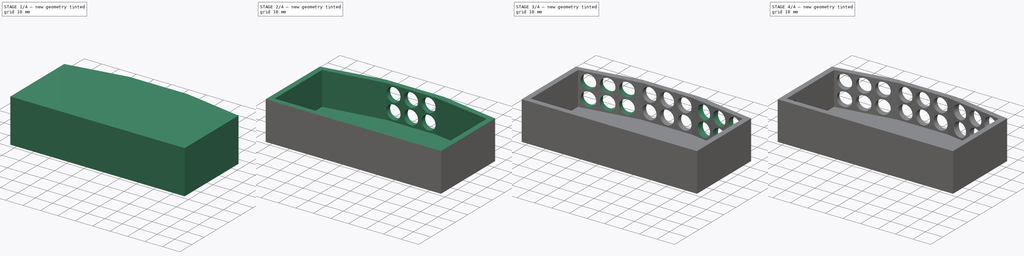
[diagram: build sequence overview — one tinted view per stage of 4, left to right]
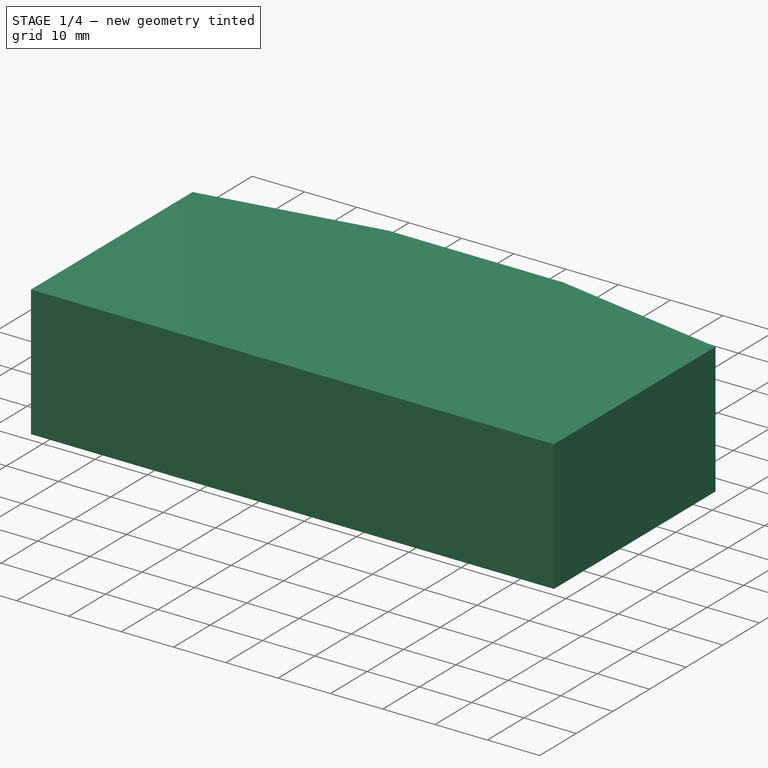
[diagram: stage 1 of 4 — iso view after this stage's code; geometry added in this stage tinted green]
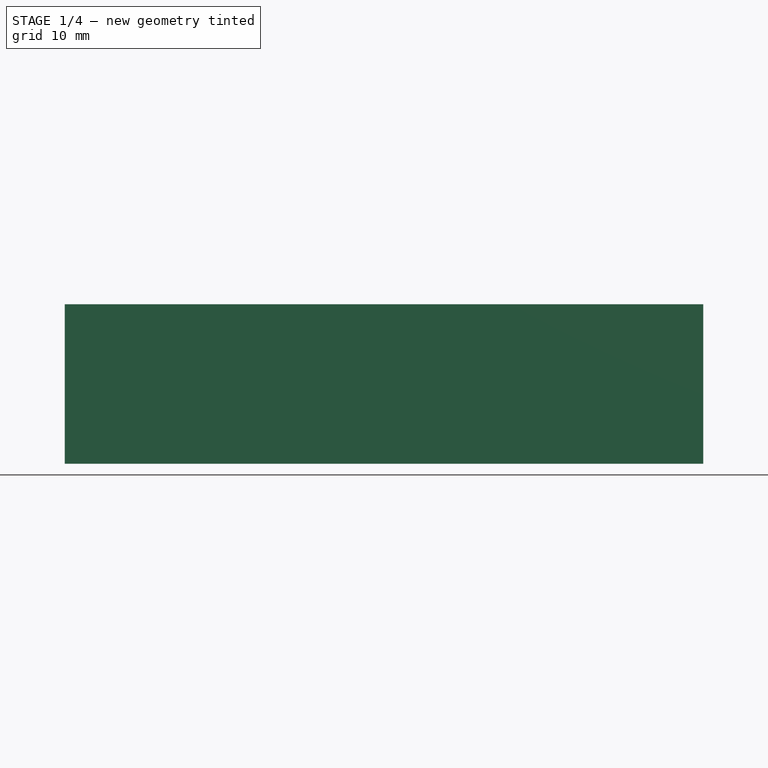
[diagram: stage 1 of 4 — front view after this stage's code; geometry added in this stage tinted green]
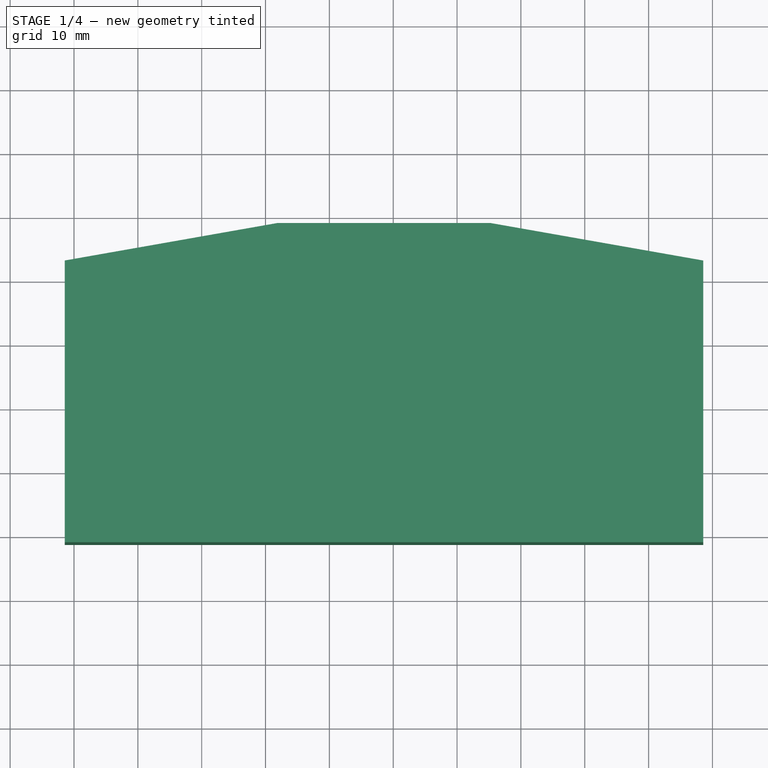
[diagram: stage 1 of 4 — top view after this stage's code; geometry added in this stage tinted green]
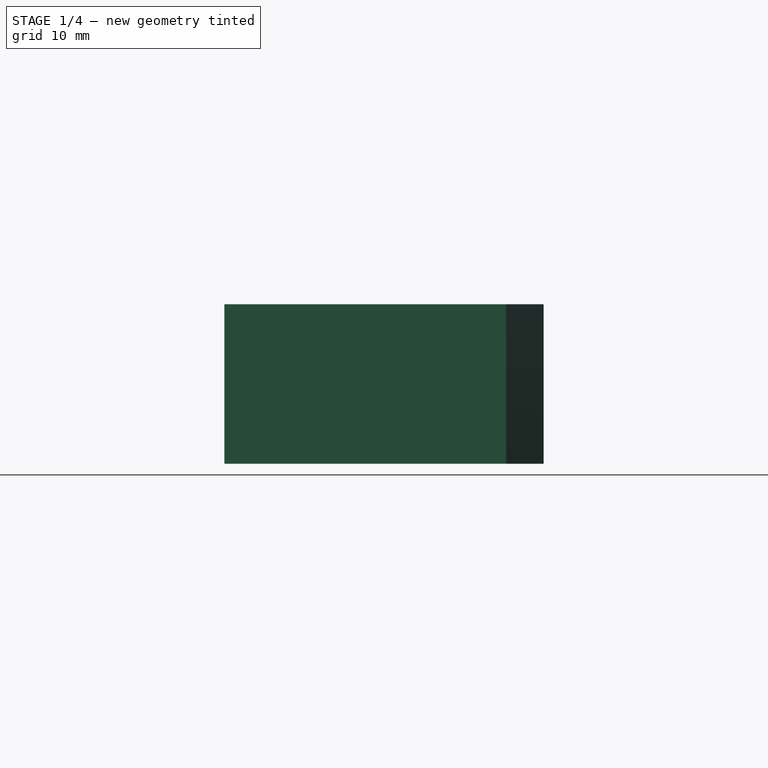
[diagram: stage 1 of 4 — right view after this stage's code; geometry added in this stage tinted green]
FCSTD DOCUMENT  (FreeCAD 0.18.4R)
Label: ir_mount_base
License: All rights reserved
LicenseURL: http://en.wikipedia.org/wiki/All_rights_reserved
objects: Sketcher::SketchObject×9, PartDesign::Pocket×9, App::MeasureDistance×9, PartDesign::Pad×1, PartDesign::Body×1
note: 30 computed .brp shape members not serialized (recipe doc carries the construction recipe); baked Part::Feature solids carry a one-line shape summary decoded from their .brp

FEATURE [Sketcher::SketchObject] Sketch
  MapMode = 5
  Support = -> [XY_Plane]
  sketch-geometry (4):
    g0: LineSegment StartX=8.55599 StartY=8.81356 StartZ=0 EndX=108.556 EndY=8.81356 EndZ=0
    g1: LineSegment StartX=108.556 StartY=8.81356 StartZ=0 EndX=108.556 EndY=58.8136 EndZ=0
    g2: LineSegment StartX=108.556 StartY=58.8136 StartZ=0 EndX=8.55599 EndY=58.8136 EndZ=0
    g3: LineSegment StartX=8.55599 StartY=58.8136 StartZ=0 EndX=8.55599 EndY=8.81356 EndZ=0
  constraints (10):
    c: Coincident(g0,g1)
    c: Coincident(g1,g2)
    c: Coincident(g2,g3)
    c: Coincident(g3,g0)
    c: Horizontal(g0)
    c: Horizontal(g2)
    c: Vertical(g1)
    c: Vertical(g3)
    c: Distance(g0) = 100
    c: Distance(g3) = 50
FEATURE [PartDesign::Pad] Pad
  Length = 25
  Length2 = 100
  Profile = -> Sketch
  Type = 0
FEATURE [Sketcher::SketchObject] Sketch001
  ExternalGeometry = -> [Pad]
  MapMode = 5
  Placement = pos=(0,0,25) rot=(0,0,1;0rad)
  Support = -> [Pad]
  sketch-geometry (6):
    g0: LineSegment StartX=8.55599 StartY=58.8136 StartZ=0 EndX=41.856 EndY=58.8136 EndZ=0
    g1: LineSegment StartX=41.856 StartY=58.8136 StartZ=0 EndX=8.55599 EndY=52.9436 EndZ=0
    g2: LineSegment StartX=8.55599 StartY=52.9436 StartZ=0 EndX=8.55599 EndY=58.8136 EndZ=0
    g3: LineSegment StartX=108.556 StartY=58.8136 StartZ=0 EndX=75.256 EndY=58.8136 EndZ=0
    g4: LineSegment StartX=75.256 StartY=58.8136 StartZ=0 EndX=108.556 EndY=52.9436 EndZ=0
    g5: LineSegment StartX=108.556 StartY=58.8136 StartZ=0 EndX=108.556 EndY=52.9436 EndZ=0
  constraints (18):
    c: Distance(g2) = 5.87
    c: Coincident(g2,g0)
    c: Coincident(g1,g2)
    c: Coincident(g1,g0)
    c: Distance(g0) = 33.3
    c: Distance(g1,g-3) = 5.87
    c: Distance(g0,g-4) = 33.3
    c: Distance(g0,g-5) = 50
    c: Distance(g1,g-6) = 100
    c: Coincident(g5,g3)
    c: Coincident(g4,g5)
    c: Coincident(g3,g4)
    c: Distance(g5) = 5.87
    c: Distance(g3) = 33.3
    c: Distance(g3,g-4) = 100
    c: Distance(g3,g-5) = 50
    c: Distance(g3,g-5) = 50
    c: Distance(g4,g-4) = 100
FEATURE [PartDesign::Pocket] Pocket
  BaseFeature = -> Pad
  Length = 25
  Length2 = 100
  Profile = -> Sketch001
  Type = 0
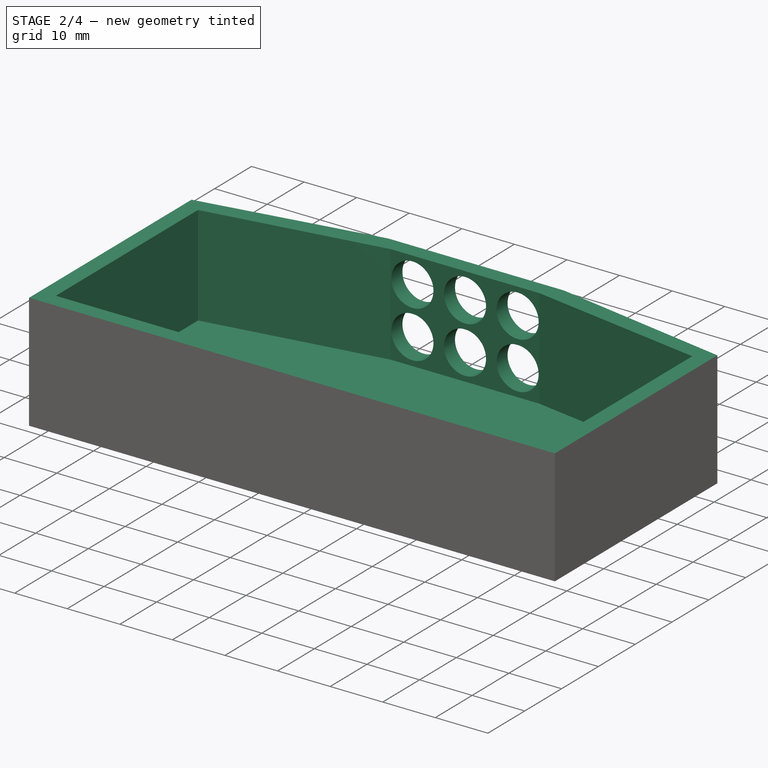
[diagram: stage 2 of 4 — iso view after this stage's code; geometry added in this stage tinted green]
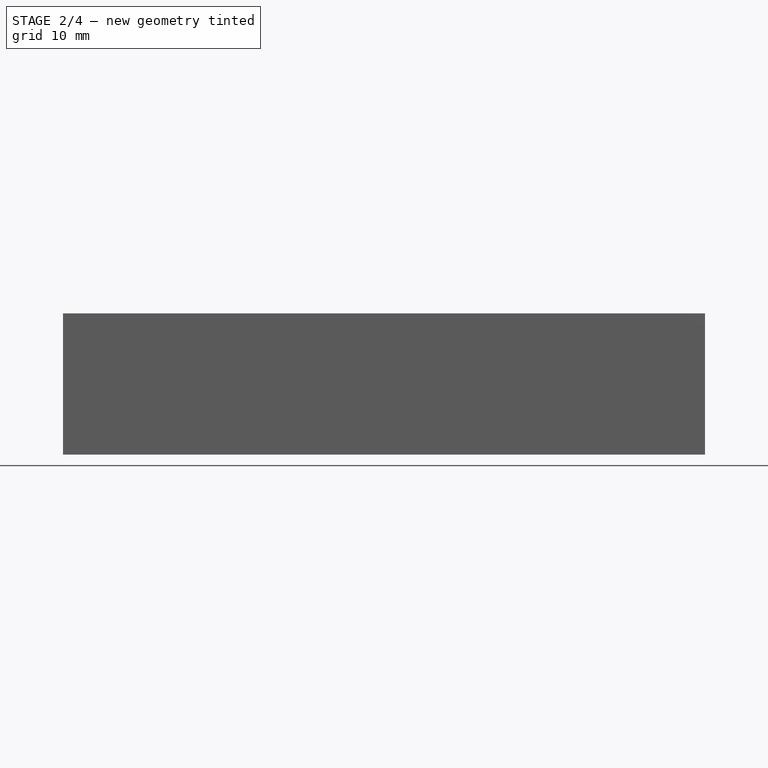
[diagram: stage 2 of 4 — front view after this stage's code; geometry added in this stage tinted green]
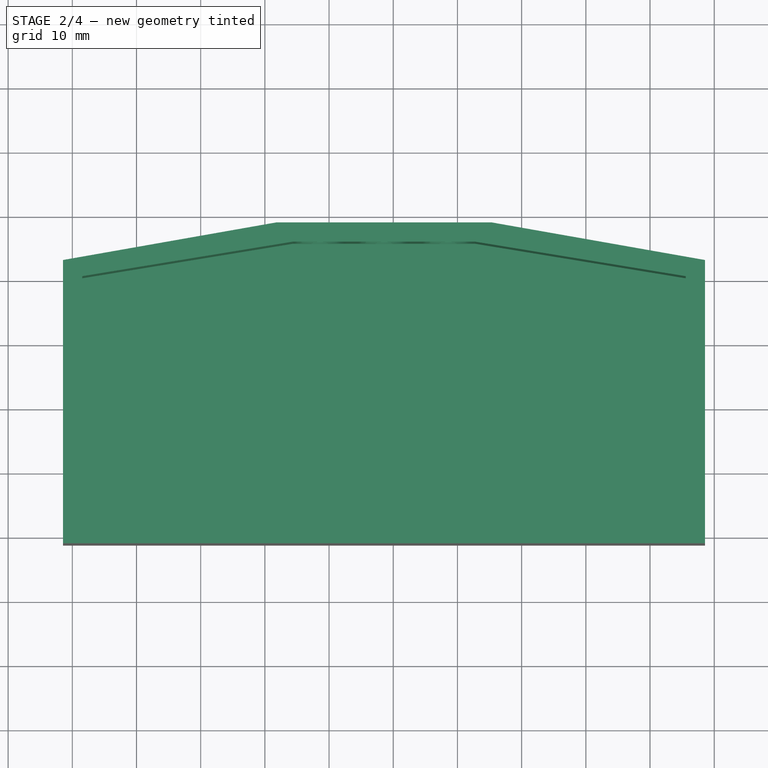
[diagram: stage 2 of 4 — top view after this stage's code; geometry added in this stage tinted green]
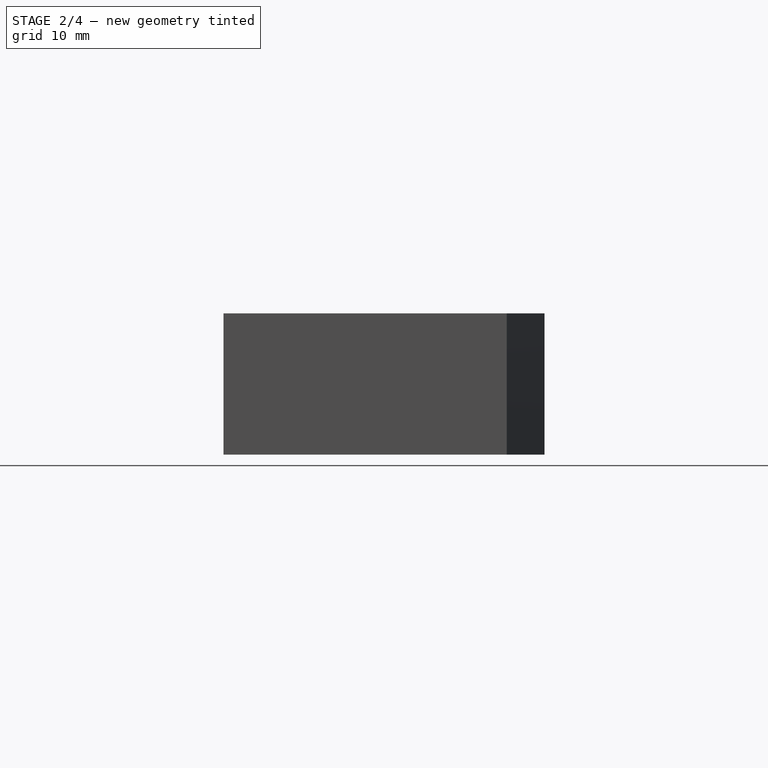
[diagram: stage 2 of 4 — right view after this stage's code; geometry added in this stage tinted green]
FEATURE [Sketcher::SketchObject] Sketch002
  ExternalGeometry = -> [Pocket]
  MapMode = 5
  Placement = pos=(0,0,25) rot=(0,0,1;0rad)
  Support = -> [Pocket]
  sketch-geometry (6):
    g0: LineSegment StartX=11.556 StartY=50.4261 StartZ=0 EndX=11.556 EndY=11.8136 EndZ=0
    g1: LineSegment StartX=11.556 StartY=11.8136 StartZ=0 EndX=105.556 EndY=11.8136 EndZ=0
    g2: LineSegment StartX=105.556 StartY=11.8136 StartZ=0 EndX=105.556 EndY=50.4261 EndZ=0
    g3: LineSegment StartX=105.556 StartY=50.4261 StartZ=0 EndX=72.6947 EndY=55.8136 EndZ=0
    g4: LineSegment StartX=72.6947 StartY=55.8136 StartZ=0 EndX=44.4173 EndY=55.8136 EndZ=0
    g5: LineSegment StartX=44.4173 StartY=55.8136 StartZ=0 EndX=11.556 EndY=50.4261 EndZ=0
  constraints (18):
    c: Coincident(g4,g3)
    c: Coincident(g3,g2)
    c: Coincident(g2,g1)
    c: Coincident(g1,g0)
    c: Coincident(g0,g5)
    c: Coincident(g5,g4)
    c: Distance(g0,g-5) = 3
    c: Distance(g0,g-5) = 3
    c: Distance(g0,g-6) = 3
    c: Distance(g1,g-7) = 3
    c: Distance(g1,g-6) = 3
    c: Distance(g2,g-7) = 3
    c: Distance(g5) = 33.3
    c: Distance(g3) = 33.3
    c: Distance(g4,g-4) = 3
    c: Distance(g3,g-4) = 3
    c: Distance(g2,g-8) = 3
    c: Distance(g0,g-3) = 3
FEATURE [PartDesign::Pocket] Pocket001
  BaseFeature = -> Pocket
  Length = 22
  Length2 = 100
  Profile = -> Sketch002
  Type = 0
FEATURE [PartDesign::Pocket] Pocket002
  BaseFeature = -> Pocket001
  Length = 3
  Length2 = 100
  Profile = -> Pocket001 [Face5]
  Type = 0
FEATURE [Sketcher::SketchObject] Sketch003
  ExternalGeometry = -> [Pocket002]
  MapMode = 5
  Placement = pos=(0,58.8136,0) rot=(0,0.707107,0.707107;3.14159rad)
  Support = -> [Pocket002]
  sketch-geometry (6):
    g0: Circle CenterX=-58.556 CenterY=17 CenterZ=0 NormalX=0 NormalY=0 NormalZ=1 AngleXU=0 Radius=4
    g1: Circle CenterX=-48.556 CenterY=17 CenterZ=0 NormalX=0 NormalY=0 NormalZ=1 AngleXU=0 Radius=4
    g2: Circle CenterX=-68.556 CenterY=17 CenterZ=0 NormalX=0 NormalY=0 NormalZ=1 AngleXU=0 Radius=4
    g3: Circle CenterX=-68.556 CenterY=8 CenterZ=0 NormalX=0 NormalY=0 NormalZ=1 AngleXU=0 Radius=4
    g4: Circle CenterX=-58.556 CenterY=8 CenterZ=0 NormalX=0 NormalY=0 NormalZ=1 AngleXU=0 Radius=4
    g5: Circle CenterX=-48.556 CenterY=8 CenterZ=0 NormalX=0 NormalY=0 NormalZ=1 AngleXU=0 Radius=4
  constraints (20):
    c: Radius(g1) = 4
    c: Radius(g0) = 4
    c: Radius(g2) = 4
    c: Radius(g3) = 4
    c: Radius(g4) = 4
    c: Radius(g5) = 4
    c: Distance(g5,g-3) = 8
    c: Distance(g1,g-6) = 5
    c: Distance(g0,g-6) = 5
    c: Distance(g4,g-3) = 8
    c: Distance(g3,g-3) = 8
    c: Distance(g2,g-6) = 5
    c: Distance(g-5) = 22
    c: Distance(g-6) = 33.4
    c: Distance(g0,g1) = 10
    c: Distance(g2,g0) = 10
    c: Distance(g1,g-5) = 6.7
    c: Distance(g5,g-5) = 6.7
    c: Distance(g5,g4) = 10
    c: Distance(g4,g3) = 10
FEATURE [PartDesign::Pocket] Pocket003
  BaseFeature = -> Pocket002
  Length = 5
  Length2 = 100
  Profile = -> Sketch003
  Type = 0
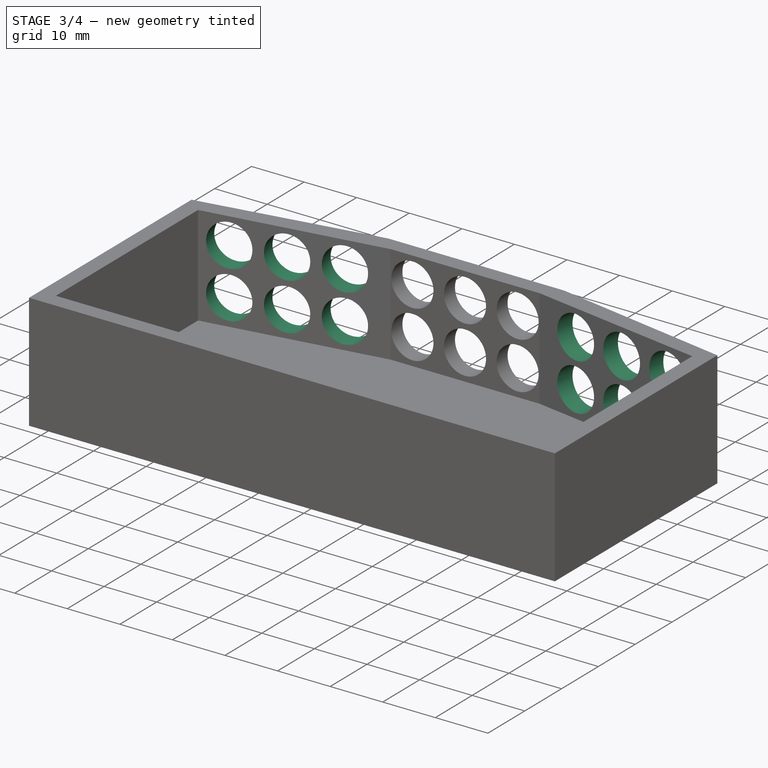
[diagram: stage 3 of 4 — iso view after this stage's code; geometry added in this stage tinted green]
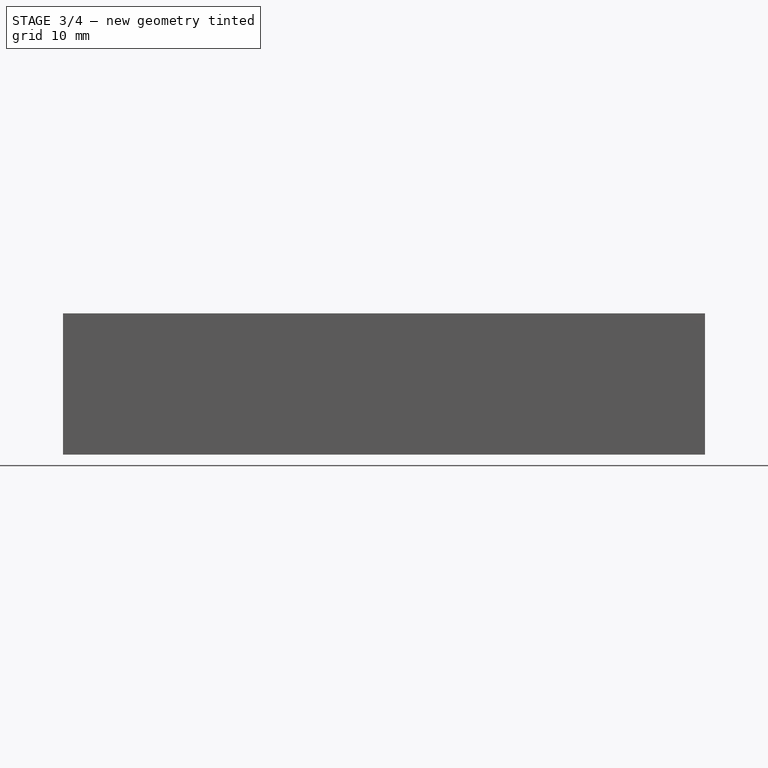
[diagram: stage 3 of 4 — front view after this stage's code; geometry added in this stage tinted green]
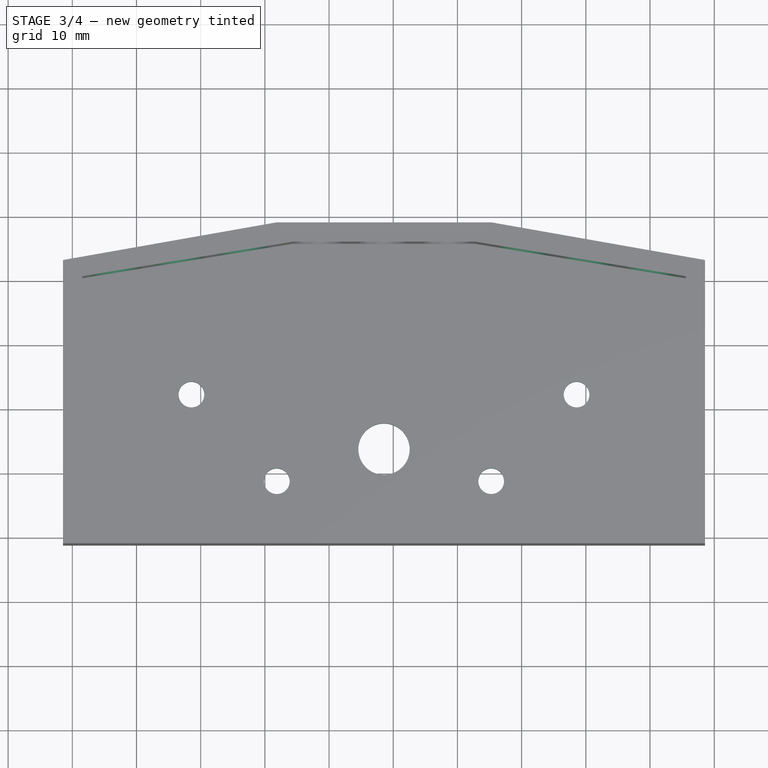
[diagram: stage 3 of 4 — top view after this stage's code; geometry added in this stage tinted green]
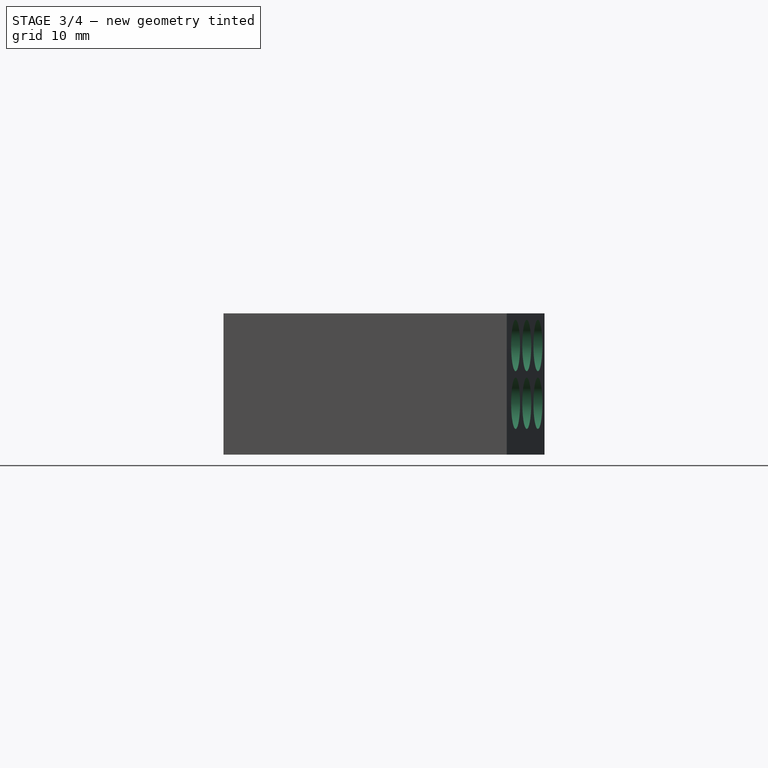
[diagram: stage 3 of 4 — right view after this stage's code; geometry added in this stage tinted green]
FEATURE [Sketcher::SketchObject] Sketch004
  ExternalGeometry = -> [Pocket003]
  MapMode = 5
  Placement = pos=(-8.79359,49.8852,0) rot=(-0.061728,0.705758,0.705758;3.26489rad)
  Support = -> [Pocket003]
  sketch-geometry (6):
    g0: Circle CenterX=-45.5271 CenterY=17 CenterZ=0 NormalX=0 NormalY=0 NormalZ=1 AngleXU=0 Radius=4
    g1: Circle CenterX=-35.5271 CenterY=17 CenterZ=0 NormalX=0 NormalY=0 NormalZ=1 AngleXU=0 Radius=4
    g2: Circle CenterX=-25.5271 CenterY=17 CenterZ=0 NormalX=0 NormalY=0 NormalZ=1 AngleXU=0 Radius=4
    g3: Circle CenterX=-45.5271 CenterY=8 CenterZ=0 NormalX=0 NormalY=0 NormalZ=1 AngleXU=0 Radius=4
    g4: Circle CenterX=-35.5271 CenterY=8 CenterZ=0 NormalX=0 NormalY=0 NormalZ=1 AngleXU=0 Radius=4
    g5: Circle CenterX=-25.5271 CenterY=8 CenterZ=0 NormalX=0 NormalY=0 NormalZ=1 AngleXU=0 Radius=4
  constraints (22):
    c: Distance(g-3) = 33.8134
    c: Distance(g-5) = 33.8134
    c: Distance(g-4) = 22
    c: Radius(g2) = 4
    c: Radius(g1) = 4
    c: Radius(g0) = 4
    c: Radius(g5) = 4
    c: Radius(g4) = 4
    c: Radius(g3) = 4
    c: Distance(g1,g2) = 10
    c: Distance(g0,g1) = 10
    c: Distance(g0,g-3) = 5
    c: Distance(g1,g-3) = 5
    c: Distance(g2,g-3) = 5
    c: Distance(g5,g-5) = 8
    c: Distance(g4,g-5) = 8
    c: Distance(g-5) = 33.8134
    c: Distance(g3,g-5) = 8
    c: Distance(g3,g4) = 10
    c: Distance(g4,g5) = 10
    c: Distance(g2,g-4) = 7.91
    c: Distance(g5,g-4) = 7.91
FEATURE [PartDesign::Pocket] Pocket004
  BaseFeature = -> Pocket003
  Length = 5
  Length2 = 100
  Profile = -> Sketch004
  Type = 0
FEATURE [Sketcher::SketchObject] Sketch005
  ExternalGeometry = -> [Pocket004]
  MapMode = 5
  Placement = pos=(12.323,69.9072,0) rot=(0.061728,0.705758,0.705758;3.01829rad)
  Support = -> [Pocket004]
  sketch-geometry (6):
    g0: Circle CenterX=-89.81 CenterY=17 CenterZ=0 NormalX=0 NormalY=0 NormalZ=1 AngleXU=0 Radius=4
    g1: Circle CenterX=-79.81 CenterY=17 CenterZ=0 NormalX=0 NormalY=0 NormalZ=1 AngleXU=0 Radius=4
    g2: Circle CenterX=-69.81 CenterY=17 CenterZ=0 NormalX=0 NormalY=0 NormalZ=1 AngleXU=0 Radius=4
    g3: Circle CenterX=-89.81 CenterY=8 CenterZ=0 NormalX=0 NormalY=0 NormalZ=1 AngleXU=0 Radius=4
    g4: Circle CenterX=-79.81 CenterY=8 CenterZ=0 NormalX=0 NormalY=0 NormalZ=1 AngleXU=0 Radius=4
    g5: Circle CenterX=-69.81 CenterY=8 CenterZ=0 NormalX=0 NormalY=0 NormalZ=1 AngleXU=0 Radius=4
  constraints (18):
    c: Radius(g2) = 4
    c: Radius(g1) = 4
    c: Radius(g0) = 4
    c: Radius(g3) = 4
    c: Radius(g4) = 4
    c: Radius(g5) = 4
    c: Distance(g2,g-3) = 5
    c: Distance(g1,g-3) = 5
    c: Distance(g1,g2) = 10
    c: Distance(g0,g-3) = 5
    c: Distance(g1,g0) = 10
    c: Distance(g3,g-5) = 8
    c: Distance(g4,g-5) = 8
    c: Distance(g5,g-5) = 8
    c: Distance(g5,g4) = 10
    c: Distance(g3,g4) = 10
    c: Distance(g0,g-6) = 7.9067
    c: Distance(g3,g-6) = 7.9067
FEATURE [PartDesign::Pocket] Pocket005
  BaseFeature = -> Pocket004
  Length = 5
  Length2 = 100
  Profile = -> Sketch005
  Type = 0
FEATURE [Sketcher::SketchObject] Sketch006
  ExternalGeometry = -> [Pocket005]
  MapMode = 5
  Placement = pos=(0,0,0) rot=(1,0,0;3.14159rad)
  Support = -> [Pocket005]
  sketch-geometry (5):
    g0: Circle CenterX=41.856 CenterY=-18.8136 CenterZ=0 NormalX=0 NormalY=0 NormalZ=1 AngleXU=0 Radius=2
    g1: Circle CenterX=75.256 CenterY=-18.8136 CenterZ=0 NormalX=0 NormalY=0 NormalZ=1 AngleXU=0 Radius=2
    g2: Circle CenterX=58.556 CenterY=-23.8136 CenterZ=0 NormalX=0 NormalY=0 NormalZ=1 AngleXU=0 Radius=4
    g3: Circle CenterX=88.556 CenterY=-32.3136 CenterZ=0 NormalX=0 NormalY=0 NormalZ=1 AngleXU=0 Radius=2
    g4: Circle CenterX=28.556 CenterY=-32.3136 CenterZ=0 NormalX=0 NormalY=0 NormalZ=1 AngleXU=0 Radius=2
  constraints (16):
    c: Radius(g1) = 2
    c: Radius(g4) = 2
    c: Radius(g3) = 2
    c: Radius(g0) = 2
    c: Radius(g2) = 4
    c: Distance(g1,g-4) = 33.3
    c: Distance(g0,g-5) = 33.3
    c: Distance(g0,g-3) = 10
    c: Distance(g-3) = 100
    c: Distance(g1,g-3) = 10
    c: Distance(g2,g-5) = 50
    c: Distance(g4,g-3) = 23.5
    c: Distance(g3,g-3) = 23.5
    c: Distance(g3,g-4) = 20
    c: Distance(g4,g-5) = 20
    c: Distance(g2,g-3) = 15
FEATURE [PartDesign::Pocket] Pocket006
  BaseFeature = -> Pocket005
  Length = 5
  Length2 = 100
  Profile = -> Sketch006
  Type = 0
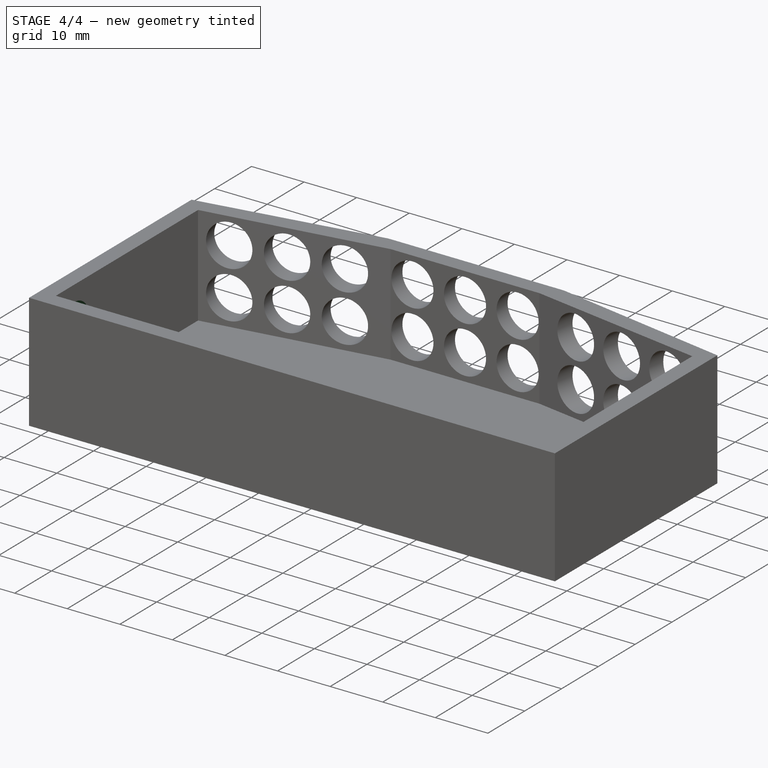
[diagram: stage 4 of 4 — iso view after this stage's code; geometry added in this stage tinted green]
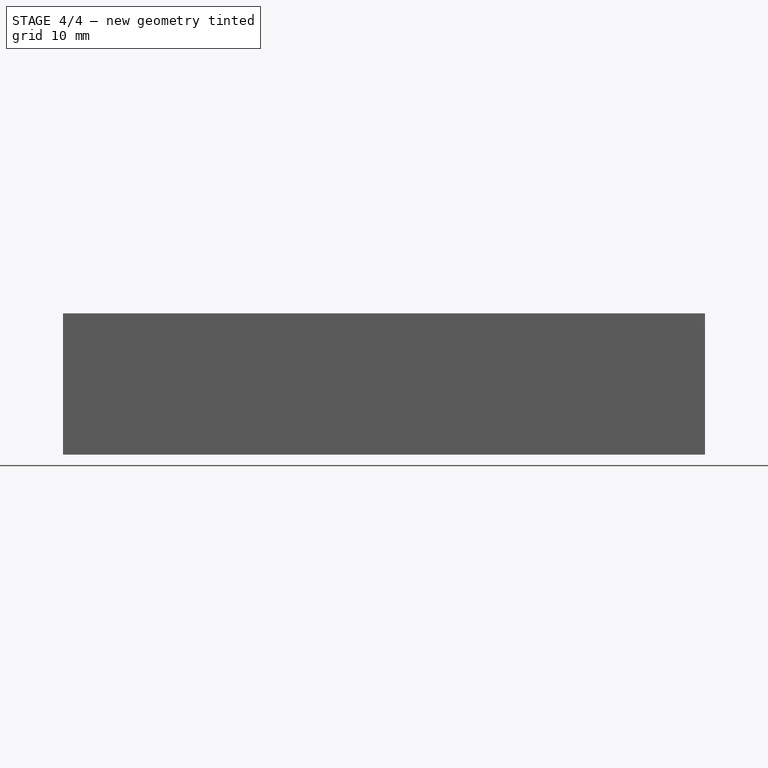
[diagram: stage 4 of 4 — front view after this stage's code; geometry added in this stage tinted green]
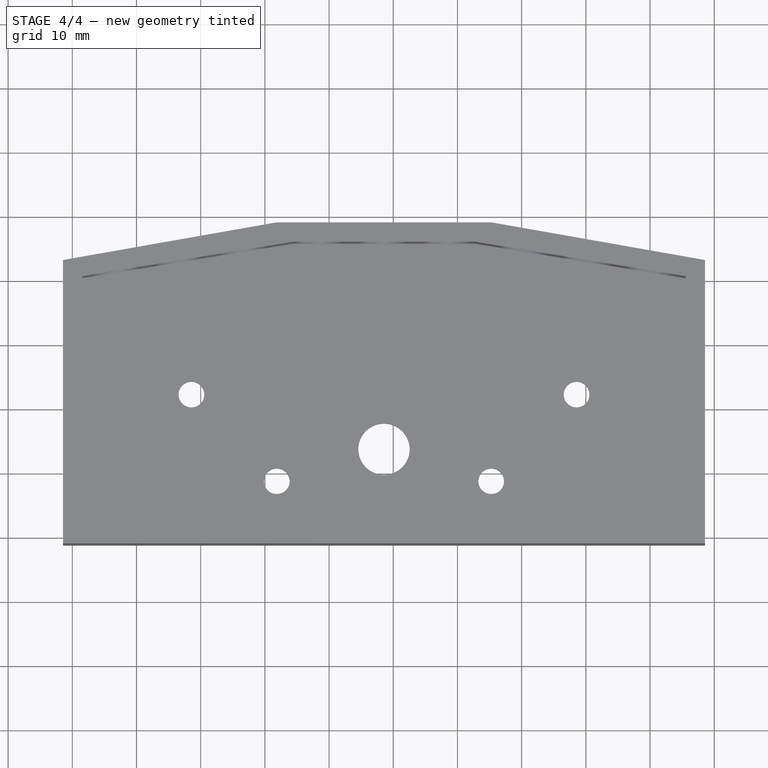
[diagram: stage 4 of 4 — top view after this stage's code; geometry added in this stage tinted green]
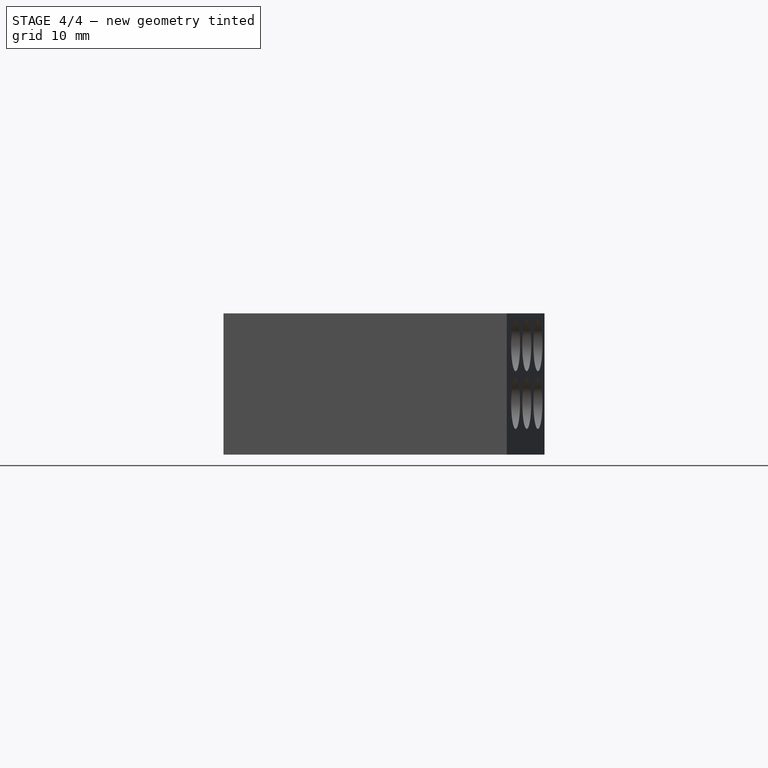
[diagram: stage 4 of 4 — right view after this stage's code; geometry added in this stage tinted green]
FEATURE [Sketcher::SketchObject] Sketch007
  ExternalGeometry = -> [Pocket006]
  MapMode = 5
  Placement = pos=(0,0,0) rot=(1,0,0;3.14159rad)
  Support = -> [Pocket006]
  sketch-geometry (2):
    g0: Circle CenterX=28.556 CenterY=-32.3136 CenterZ=0 NormalX=0 NormalY=0 NormalZ=1 AngleXU=0 Radius=3
    g1: Circle CenterX=88.556 CenterY=-32.3136 CenterZ=0 NormalX=0 NormalY=0 NormalZ=1 AngleXU=0 Radius=3
  constraints (4):
    c: Coincident(g1,g-3)
    c: Coincident(g0,g-4)
    c: Radius(g1) = 3
    c: Radius(g0) = 3
FEATURE [PartDesign::Pocket] Pocket007
  BaseFeature = -> Pocket006
  Length = 1
  Length2 = 100
  Profile = -> Sketch007
  Type = 0
FEATURE [Sketcher::SketchObject] Sketch008
  ExternalGeometry = -> [Pocket007]
  MapMode = 5
  Placement = pos=(8.55599,0,0) rot=(0.57735,-0.57735,-0.57735;2.0944rad)
  Support = -> [Pocket007]
  sketch-geometry (1):
    g0: Circle CenterX=-16.8136 CenterY=15 CenterZ=0 NormalX=0 NormalY=0 NormalZ=1 AngleXU=0 Radius=4
  constraints (4):
    c: Radius(g0) = 4
    c: Distance(g-4) = 44.13
    c: Distance(g0,g-5) = 8
    c: Distance(g0,g-4) = 7
FEATURE [PartDesign::Pocket] Pocket008
  BaseFeature = -> Pocket007
  Length = 5
  Length2 = 100
  Profile = -> Sketch008
  Type = 0
FEATURE [PartDesign::Body] Body
  Group = -> [Sketch,Pad,Sketch001,Pocket,Sketch002,Pocket001,Pocket002,Sketch003,Pocket003,Sketch004,Pocket004,Sketch005,Pocket005,Sketch006,Pocket006,Sketch007,Pocket007,Sketch008,Pocket008]
  Origin = -> Origin
  Tip = -> Pocket008
FEATURE [App::MeasureDistance] Distance  label="Distance: 100.00 mm"
  Distance = 100
  P1 = (8.55599,8.81356,22)
  P2 = (108.556,8.81356,22)
FEATURE [App::MeasureDistance] Distance001  label="Distance: 44.11 mm"
  Distance = 44.1091
  P1 = (108.556,52.9226,22)
  P2 = (108.556,8.81356,22)
FEATURE [App::MeasureDistance] Distance002  label="Distance: 50.09 mm"
  Distance = 50.088
  P1 = (75.256,58.8136,22)
  P2 = (78.2237,8.81356,22)
FEATURE [App::MeasureDistance] Distance003  label="Distance: 8.00 mm"
  Distance = 7.99699
  P1 = (68.4412,58.8136,4.02916)
  P2 = (68.3281,58.8136,12.0254)
FEATURE [App::MeasureDistance] Distance004  label="Distance: 7.99 mm"
  Distance = 7.98536
  P1 = (54.6004,23.4477,3)
  P2 = (62.5846,23.5861,3)
FEATURE [App::MeasureDistance] Distance005  label="Distance: 4.02 mm"
  Distance = 4.01923
  P1 = (26.583,32.0909,3)
  P2 = (30.6007,32.2011,3)
FEATURE [App::MeasureDistance] Distance006  label="Distance: 3.97 mm"
  Distance = 3.97085
  P1 = (39.8682,18.7127,3)
  P2 = (43.8389,18.6727,3)
FEATURE [App::MeasureDistance] Distance007  label="Distance: 22.00 mm"
  Distance = 22
  P1 = (108.556,8.81356,22)
  P2 = (108.556,8.81356,0)
FEATURE [App::MeasureDistance] Distance008  label="Distance: 7.85 mm"
  Distance = 7.8491
  P1 = (11.556,12.8659,14.569)
  P2 = (11.556,20.6973,14.0427)
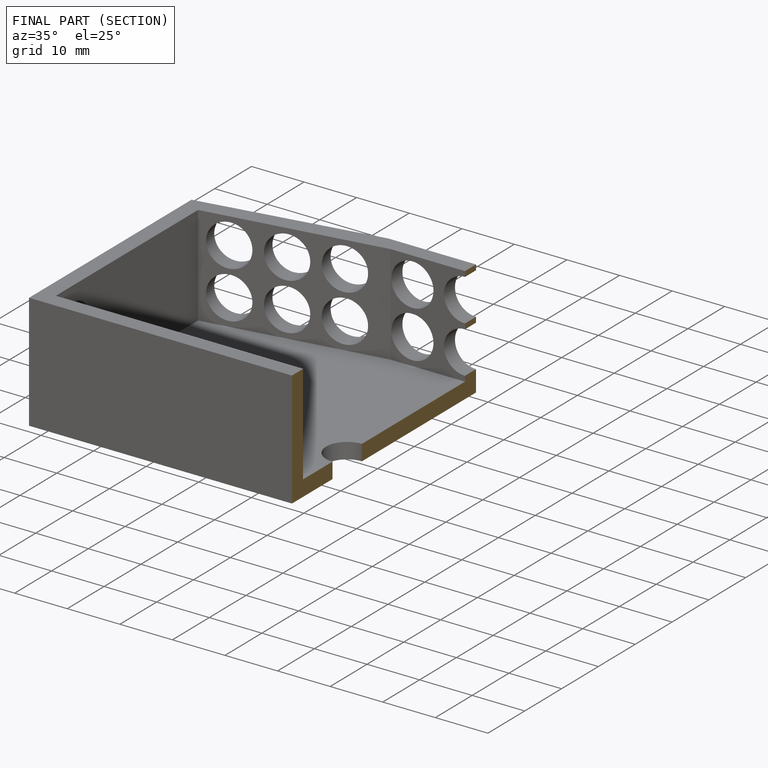
[diagram: finished part — half-section view (interior)]
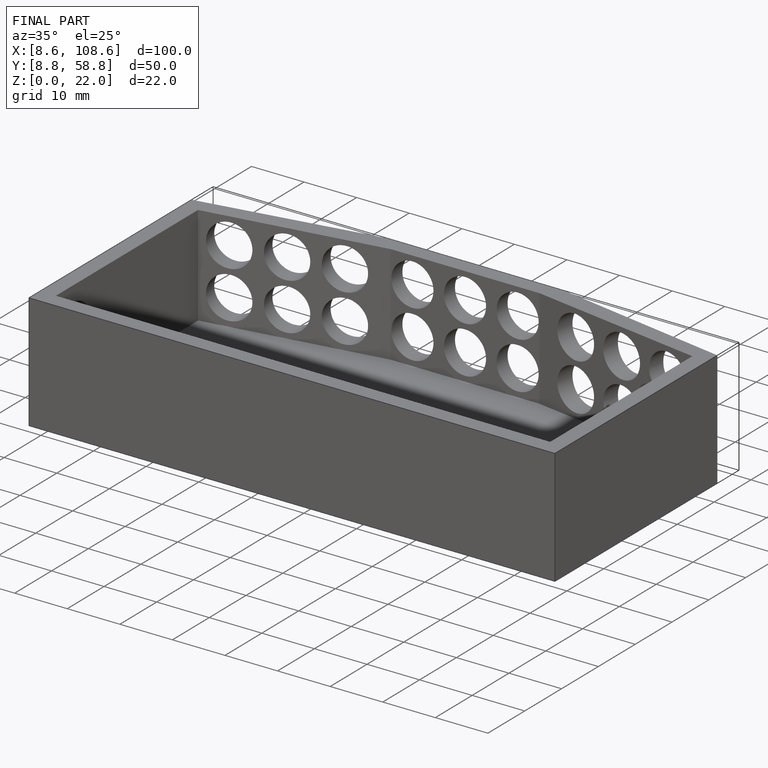
[diagram: finished part — iso view with bounding-box wireframe]
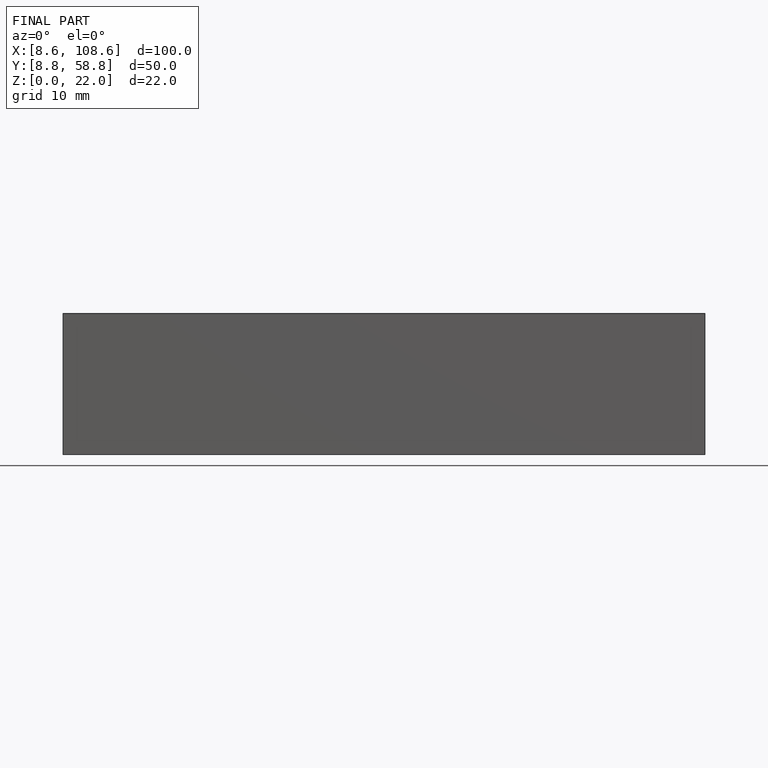
[diagram: finished part — front view with bounding-box wireframe]
